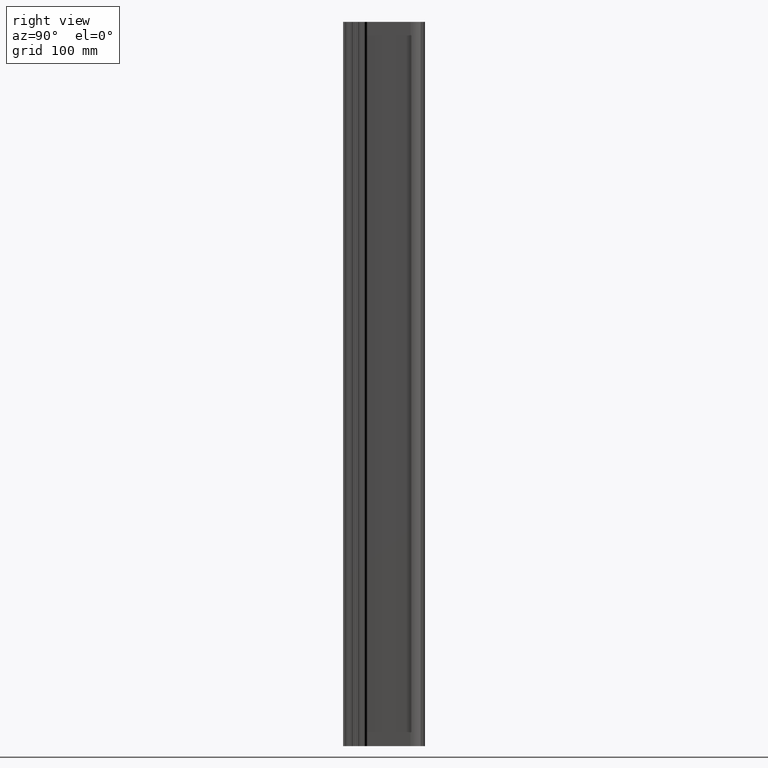
[diagram: clean part render]
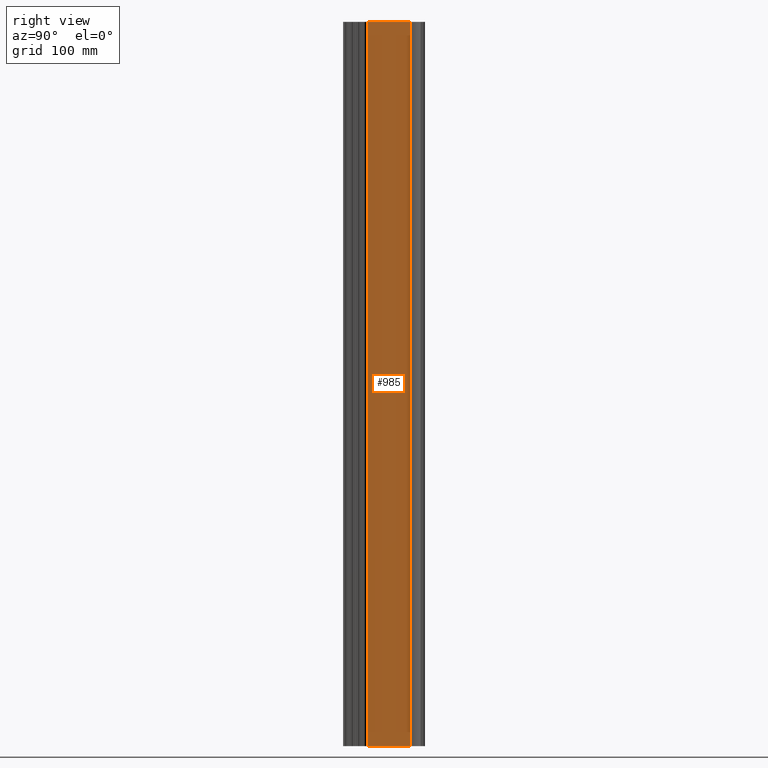
[diagram: same view with one face highlighted and labeled with its STEP entity id]
A machine part, right view. The second image highlights one B-rep face of the part: STEP entity #985.
In plain terms, the highlighted planar face has unit normal (-1, 0, 0).
Its self-contained STEP definition (entity closure, byte-faithful):
#95 = VECTOR ( 'NONE', #1549, 1000.000000000000000 ) ;
#261 = CARTESIAN_POINT ( 'NONE',  ( 2.999999999999988900, -79.17157287525377300, 500.0000000000000000 ) ) ;
#306 = PLANE ( 'NONE',  #525 ) ;
#326 = EDGE_CURVE ( 'NONE', #1646, #1947, #959, .T. ) ;
#332 = CARTESIAN_POINT ( 'NONE',  ( 3.000000000000009800, -20.00000000000000400, 500.0000000000000000 ) ) ;
#424 = VECTOR ( 'NONE', #1950, 1000.000000000000000 ) ;
#525 = AXIS2_PLACEMENT_3D ( 'NONE', #1239, #1897, #1288 ) ;
#581 = EDGE_LOOP ( 'NONE', ( #1383, #639, #1473, #1537 ) ) ;
#607 = EDGE_CURVE ( 'NONE', #1289, #1188, #834, .T. ) ;
#639 = ORIENTED_EDGE ( 'NONE', *, *, #607, .F. ) ;
#723 = CARTESIAN_POINT ( 'NONE',  ( 3.000000000000009800, -20.00000000000000400, 500.0000000000000000 ) ) ;
#834 = LINE ( 'NONE', #1781, #424 ) ;
#959 = LINE ( 'NONE', #261, #95 ) ;
#985 = ADVANCED_FACE ( 'NONE', ( #1136 ), #306, .F. ) ;
#1001 = EDGE_CURVE ( 'NONE', #1646, #1289, #1623, .T. ) ;
#1136 = FACE_OUTER_BOUND ( 'NONE', #581, .T. ) ;
#1188 = VERTEX_POINT ( 'NONE', #1876 ) ;
#1239 = CARTESIAN_POINT ( 'NONE',  ( 3.000000000000009800, -20.00000000000000400, 500.0000000000000000 ) ) ;
#1288 = DIRECTION ( 'NONE',  ( -2.711807608463315000E-016, -1.000000000000000000, 0.0000000000000000000 ) ) ;
#1289 = VERTEX_POINT ( 'NONE', #723 ) ;
#1383 = ORIENTED_EDGE ( 'NONE', *, *, #1572, .T. ) ;
#1401 = DIRECTION ( 'NONE',  ( 2.711807608463315000E-016, 1.000000000000000000, -0.0000000000000000000 ) ) ;
#1473 = ORIENTED_EDGE ( 'NONE', *, *, #1001, .F. ) ;
#1537 = ORIENTED_EDGE ( 'NONE', *, *, #326, .T. ) ;
#1549 = DIRECTION ( 'NONE',  ( -0.0000000000000000000, -0.0000000000000000000, -1.000000000000000000 ) ) ;
#1567 = VECTOR ( 'NONE', #1645, 1000.000000000000000 ) ;
#1572 = EDGE_CURVE ( 'NONE', #1947, #1188, #1964, .T. ) ;
#1623 = LINE ( 'NONE', #332, #1567 ) ;
#1645 = DIRECTION ( 'NONE',  ( 2.711807608463315000E-016, 1.000000000000000000, -0.0000000000000000000 ) ) ;
#1646 = VERTEX_POINT ( 'NONE', #1669 ) ;
#1669 = CARTESIAN_POINT ( 'NONE',  ( 2.999999999999988900, -79.17157287525377300, 500.0000000000000000 ) ) ;
#1754 = CARTESIAN_POINT ( 'NONE',  ( 2.999999999999988900, -79.17157287525377300, -500.0000000000000000 ) ) ;
#1781 = CARTESIAN_POINT ( 'NONE',  ( 3.000000000000009800, -20.00000000000000400, 500.0000000000000000 ) ) ;
#1876 = CARTESIAN_POINT ( 'NONE',  ( 3.000000000000009800, -20.00000000000000400, -500.0000000000000000 ) ) ;
#1897 = DIRECTION ( 'NONE',  ( -1.000000000000000000, 2.711807608463315000E-016, 0.0000000000000000000 ) ) ;
#1921 = VECTOR ( 'NONE', #1401, 1000.000000000000000 ) ;
#1923 = CARTESIAN_POINT ( 'NONE',  ( 3.000000000000009800, -20.00000000000000400, -500.0000000000000000 ) ) ;
#1947 = VERTEX_POINT ( 'NONE', #1754 ) ;
#1950 = DIRECTION ( 'NONE',  ( -0.0000000000000000000, -0.0000000000000000000, -1.000000000000000000 ) ) ;
#1964 = LINE ( 'NONE', #1923, #1921 ) ;